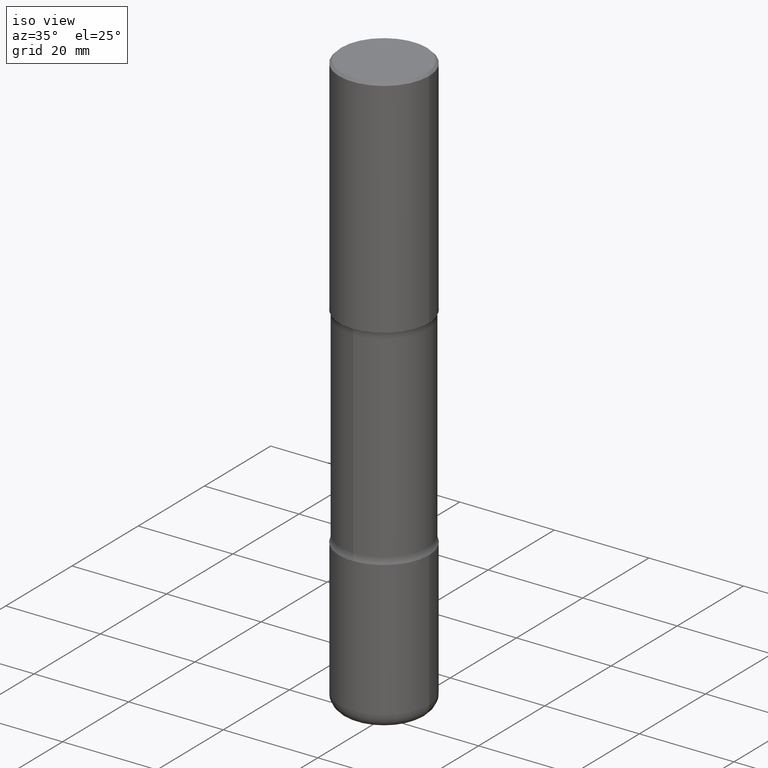
[diagram: clean part render]
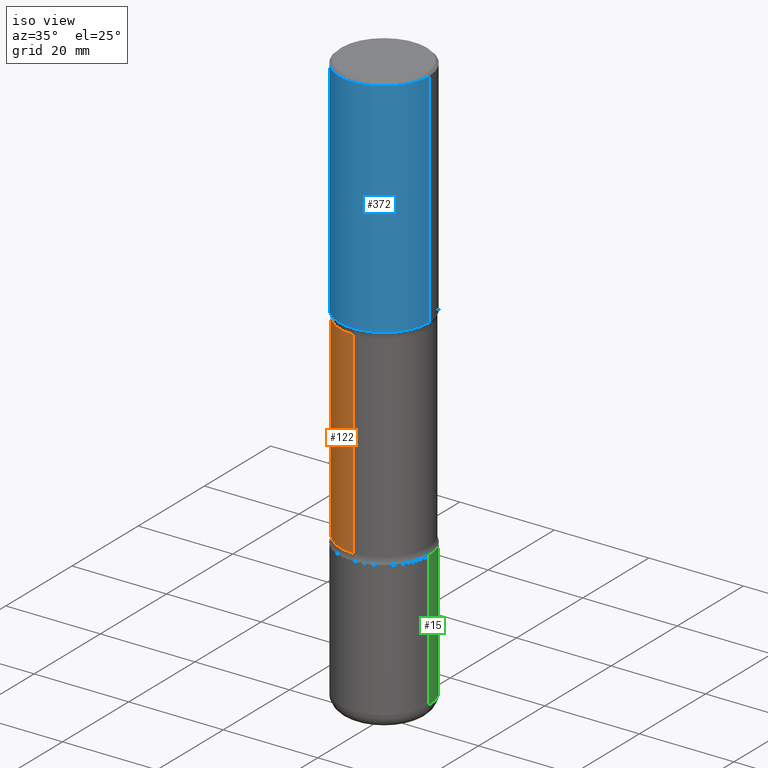
[diagram: same view with three faces highlighted in distinct colors, each labeled with its STEP entity id]
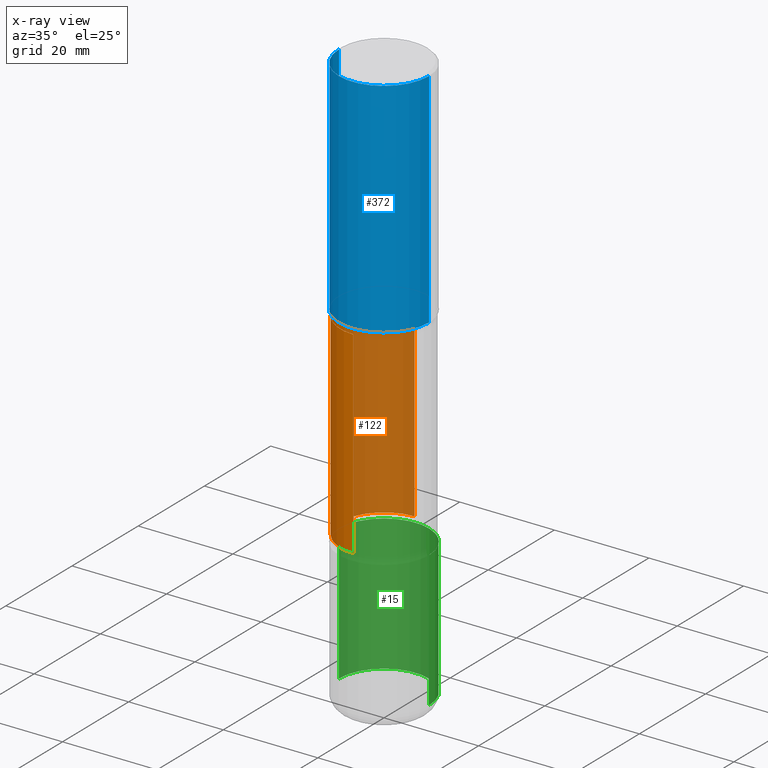
[diagram: x-ray of the same camera — body ghosted, the three highlighted faces saturated]
A machine part, iso view with three faces highlighted in distinct colors.
The next image is the same camera in x-ray (body ghosted, the three faces saturated) — at least one of them is partly hidden behind the body in this view.
Their STEP definitions:

[orange] entity #122 — the highlighted cylindrical surface (partial cylindrical patch) has radius 9.2456 mm, axis along (0, -0, -1).
#37 = CARTESIAN_POINT ( 'NONE',  ( 1.196935141160471570E-28, -1.695267532701872981E-14, -4.875000000000000000 ) ) ;
#40 = FACE_OUTER_BOUND ( 'NONE', #346, .T. ) ;
#41 = CARTESIAN_POINT ( 'NONE',  ( -2.534954010176537181E-15, -0.3640000000000067626, -1.926273774973176645 ) ) ;
#42 = VERTEX_POINT ( 'NONE', #428 ) ;
#59 = ORIENTED_EDGE ( 'NONE', *, *, #352, .F. ) ;
#65 = CARTESIAN_POINT ( 'NONE',  ( 2.541798414677888268E-15, 0.3639999999999875002, -3.573726225026824022 ) ) ;
#84 = CARTESIAN_POINT ( 'NONE',  ( 4.645831292157334029E-29, -6.818362175414279204E-15, -1.926273774973178199 ) ) ;
#97 = CIRCLE ( 'NONE', #555, 0.3639999999999999347 ) ;
#112 = DIRECTION ( 'NONE',  ( 2.483621591346876318E-29, -3.436844378969860121E-15, -1.000000000000000000 ) ) ;
#116 = CARTESIAN_POINT ( 'NONE',  ( -2.497221271188717288E-15, -0.3640000000000169211, -4.874999999999999112 ) ) ;
#122 = ADVANCED_FACE ( 'NONE', ( #40 ), #553, .T. ) ;
#134 = LINE ( 'NONE', #303, #399 ) ;
#145 = AXIS2_PLACEMENT_3D ( 'NONE', #37, #254, #169 ) ;
#151 = EDGE_CURVE ( 'NONE', #42, #376, #454, .T. ) ;
#161 = CARTESIAN_POINT ( 'NONE',  ( 2.541798414677846852E-15, 0.3639999999999931068, -1.926273774973179531 ) ) ;
#169 = DIRECTION ( 'NONE',  ( 6.982962677686265922E-15, 1.000000000000000000, -3.002030762268421058E-15 ) ) ;
#190 = ORIENTED_EDGE ( 'NONE', *, *, #432, .T. ) ;
#208 = DIRECTION ( 'NONE',  ( 2.483621591346876318E-29, -3.436844378969860121E-15, -1.000000000000000000 ) ) ;
#240 = ORIENTED_EDGE ( 'NONE', *, *, #406, .T. ) ;
#254 = DIRECTION ( 'NONE',  ( 2.483621591346876038E-29, -3.436844378969860121E-15, -1.000000000000000000 ) ) ;
#303 = CARTESIAN_POINT ( 'NONE',  ( 2.541798414677920611E-15, 0.3639999999999830593, -4.875000000000001776 ) ) ;
#339 = DIRECTION ( 'NONE',  ( 2.483621591346876038E-29, -3.436844378969860121E-15, -1.000000000000000000 ) ) ;
#346 = EDGE_LOOP ( 'NONE', ( #59, #190, #240, #531 ) ) ;
#352 = EDGE_CURVE ( 'NONE', #494, #42, #429, .T. ) ;
#370 = DIRECTION ( 'NONE',  ( 6.982962677686265922E-15, 1.000000000000000000, -3.752538452835526915E-15 ) ) ;
#376 = VERTEX_POINT ( 'NONE', #65 ) ;
#393 = VERTEX_POINT ( 'NONE', #161 ) ;
#399 = VECTOR ( 'NONE', #208, 39.37007874015748143 ) ;
#406 = EDGE_CURVE ( 'NONE', #393, #376, #134, .T. ) ;
#414 = DIRECTION ( 'NONE',  ( 2.483621591346876038E-29, -3.436844378969860121E-15, -1.000000000000000000 ) ) ;
#428 = CARTESIAN_POINT ( 'NONE',  ( -2.534954010176493005E-15, -0.3640000000000124802, -3.573726225026821801 ) ) ;
#429 = LINE ( 'NONE', #116, #525 ) ;
#432 = EDGE_CURVE ( 'NONE', #494, #393, #97, .T. ) ;
#454 = CIRCLE ( 'NONE', #529, 0.3639999999999999902 ) ;
#494 = VERTEX_POINT ( 'NONE', #41 ) ;
#505 = CARTESIAN_POINT ( 'NONE',  ( 8.737479767827876244E-29, -1.248039986800127244E-14, -3.573726225026822689 ) ) ;
#512 = DIRECTION ( 'NONE',  ( 6.982962677686265922E-15, 1.000000000000000000, -3.002030762268421058E-15 ) ) ;
#525 = VECTOR ( 'NONE', #112, 39.37007874015748143 ) ;
#529 = AXIS2_PLACEMENT_3D ( 'NONE', #505, #339, #512 ) ;
#531 = ORIENTED_EDGE ( 'NONE', *, *, #151, .F. ) ;
#553 = CYLINDRICAL_SURFACE ( 'NONE', #145, 0.3639999999999999902 ) ;
#555 = AXIS2_PLACEMENT_3D ( 'NONE', #84, #414, #370 ) ;

[blue] entity #372 — the highlighted cylindrical surface (partial cylindrical patch) has radius 9.525 mm, axis along (-0, 0, 1).
#2 = LINE ( 'NONE', #296, #242 ) ;
#28 = CARTESIAN_POINT ( 'NONE',  ( 0.000000000000000000, 0.000000000000000000, 0.000000000000000000 ) ) ;
#33 = EDGE_CURVE ( 'NONE', #107, #288, #521, .T. ) ;
#35 = AXIS2_PLACEMENT_3D ( 'NONE', #28, #452, #245 ) ;
#63 = AXIS2_PLACEMENT_3D ( 'NONE', #82, #474, #262 ) ;
#67 = EDGE_CURVE ( 'NONE', #180, #288, #2, .T. ) ;
#75 = CARTESIAN_POINT ( 'NONE',  ( 4.585254011597131119E-29, -6.546527510330898707E-15, -1.875000000000000000 ) ) ;
#82 = CARTESIAN_POINT ( 'NONE',  ( 4.890937612370306439E-31, -6.982962677686338448E-17, -0.02000000000000013572 ) ) ;
#86 = CIRCLE ( 'NONE', #446, 0.3750000000000007772 ) ;
#89 = EDGE_CURVE ( 'NONE', #295, #107, #337, .T. ) ;
#107 = VERTEX_POINT ( 'NONE', #464 ) ;
#127 = VECTOR ( 'NONE', #333, 39.37007874015748143 ) ;
#170 = DIRECTION ( 'NONE',  ( -2.445468806185136877E-29, 3.491481338843145188E-15, 1.000000000000000000 ) ) ;
#180 = VERTEX_POINT ( 'NONE', #189 ) ;
#189 = CARTESIAN_POINT ( 'NONE',  ( 0.3750000000000007772, -9.165138514463255034E-15, -1.875000000000000000 ) ) ;
#212 = EDGE_LOOP ( 'NONE', ( #462, #498, #223, #264 ) ) ;
#213 = CARTESIAN_POINT ( 'NONE',  ( -0.3750000000000006661, 2.664535259100380430E-15, -1.844600658845592961E-29 ) ) ;
#223 = ORIENTED_EDGE ( 'NONE', *, *, #67, .T. ) ;
#242 = VECTOR ( 'NONE', #170, 39.37007874015748143 ) ;
#245 = DIRECTION ( 'NONE',  ( 1.000000000000000000, -6.982962677686265922E-15, 4.876176775795936353E-29 ) ) ;
#248 = FACE_OUTER_BOUND ( 'NONE', #212, .T. ) ;
#262 = DIRECTION ( 'NONE',  ( 1.000000000000000000, -6.982962677686266711E-15, 0.000000000000000000 ) ) ;
#264 = ORIENTED_EDGE ( 'NONE', *, *, #33, .F. ) ;
#278 = CARTESIAN_POINT ( 'NONE',  ( 0.3750000000000004996, -2.642516375941190790E-15, -0.02000000000000013572 ) ) ;
#288 = VERTEX_POINT ( 'NONE', #278 ) ;
#295 = VERTEX_POINT ( 'NONE', #401 ) ;
#296 = CARTESIAN_POINT ( 'NONE',  ( 0.3750000000000006661, -2.618611004132354355E-15, 1.828566290923479285E-29 ) ) ;
#333 = DIRECTION ( 'NONE',  ( -2.445468806185136877E-29, 3.491481338843145188E-15, 1.000000000000000000 ) ) ;
#337 = LINE ( 'NONE', #213, #127 ) ;
#338 = EDGE_CURVE ( 'NONE', #295, #180, #86, .T. ) ;
#345 = DIRECTION ( 'NONE',  ( 1.000000000000000000, -6.982962677686269077E-15, 0.000000000000000000 ) ) ;
#372 = ADVANCED_FACE ( 'NONE', ( #248 ), #409, .T. ) ;
#401 = CARTESIAN_POINT ( 'NONE',  ( -0.3750000000000007772, -6.436433094534978114E-16, -1.875000000000000000 ) ) ;
#409 = CYLINDRICAL_SURFACE ( 'NONE', #35, 0.3750000000000006661 ) ;
#446 = AXIS2_PLACEMENT_3D ( 'NONE', #75, #500, #345 ) ;
#452 = DIRECTION ( 'NONE',  ( -2.445468806185136597E-29, 3.491481338843145583E-15, 1.000000000000000000 ) ) ;
#462 = ORIENTED_EDGE ( 'NONE', *, *, #89, .F. ) ;
#464 = CARTESIAN_POINT ( 'NONE',  ( -0.3750000000000004996, 2.548781377355490268E-15, -0.02000000000000013572 ) ) ;
#474 = DIRECTION ( 'NONE',  ( -2.445468806185136597E-29, 3.491481338843145583E-15, 1.000000000000000000 ) ) ;
#498 = ORIENTED_EDGE ( 'NONE', *, *, #338, .T. ) ;
#500 = DIRECTION ( 'NONE',  ( -2.445468806185136597E-29, 3.491481338843145583E-15, 1.000000000000000000 ) ) ;
#521 = CIRCLE ( 'NONE', #63, 0.3750000000000004996 ) ;

[green] entity #15 — the highlighted cylindrical surface (partial cylindrical patch) has radius 9.525 mm, axis along (-0, 0, 1).
#5 = DIRECTION ( 'NONE',  ( -2.445468806185136597E-29, 3.491481338843145583E-15, 1.000000000000000000 ) ) ;
#15 = ADVANCED_FACE ( 'NONE', ( #179 ), #383, .T. ) ;
#16 = CARTESIAN_POINT ( 'NONE',  ( 8.864824422421121284E-29, -1.265661985330640417E-14, -3.625000000000000444 ) ) ;
#29 = AXIS2_PLACEMENT_3D ( 'NONE', #477, #5, #430 ) ;
#46 = EDGE_CURVE ( 'NONE', #200, #453, #379, .T. ) ;
#53 = AXIS2_PLACEMENT_3D ( 'NONE', #221, #380, #176 ) ;
#60 = DIRECTION ( 'NONE',  ( 1.000000000000000000, -6.982962677686263555E-15, 0.000000000000000000 ) ) ;
#98 = VERTEX_POINT ( 'NONE', #124 ) ;
#106 = DIRECTION ( 'NONE',  ( -2.445468806185136597E-29, 3.491481338843145583E-15, 1.000000000000000000 ) ) ;
#120 = LINE ( 'NONE', #290, #374 ) ;
#124 = CARTESIAN_POINT ( 'NONE',  ( 0.3750000000000002220, -1.527523085743875418E-14, -3.625000000000000444 ) ) ;
#153 = CARTESIAN_POINT ( 'NONE',  ( 0.3750000000000009437, -1.922060477033151633E-14, -4.755000000000000782 ) ) ;
#176 = DIRECTION ( 'NONE',  ( 1.000000000000000000, -6.982962677686265922E-15, 4.876176775795936353E-29 ) ) ;
#179 = FACE_OUTER_BOUND ( 'NONE', #386, .T. ) ;
#192 = DIRECTION ( 'NONE',  ( -2.445468806185136877E-29, 3.491481338843145188E-15, 1.000000000000000000 ) ) ;
#200 = VERTEX_POINT ( 'NONE', #153 ) ;
#221 = CARTESIAN_POINT ( 'NONE',  ( 0.000000000000000000, 0.000000000000000000, 0.000000000000000000 ) ) ;
#228 = EDGE_CURVE ( 'NONE', #98, #282, #513, .T. ) ;
#270 = AXIS2_PLACEMENT_3D ( 'NONE', #16, #106, #60 ) ;
#277 = EDGE_CURVE ( 'NONE', #200, #98, #486, .T. ) ;
#282 = VERTEX_POINT ( 'NONE', #537 ) ;
#290 = CARTESIAN_POINT ( 'NONE',  ( -0.3750000000000006661, 2.664535259100380430E-15, -1.844600658845592961E-29 ) ) ;
#300 = ORIENTED_EDGE ( 'NONE', *, *, #277, .F. ) ;
#317 = CARTESIAN_POINT ( 'NONE',  ( 0.3750000000000006661, -2.618611004132354355E-15, 1.828566290923479285E-29 ) ) ;
#324 = DIRECTION ( 'NONE',  ( -2.445468806185136877E-29, 3.491481338843145188E-15, 1.000000000000000000 ) ) ;
#374 = VECTOR ( 'NONE', #324, 39.37007874015748143 ) ;
#379 = CIRCLE ( 'NONE', #29, 0.3750000000000009992 ) ;
#380 = DIRECTION ( 'NONE',  ( -2.445468806185136597E-29, 3.491481338843145583E-15, 1.000000000000000000 ) ) ;
#383 = CYLINDRICAL_SURFACE ( 'NONE', #53, 0.3750000000000006661 ) ;
#386 = EDGE_LOOP ( 'NONE', ( #410, #514, #527, #300 ) ) ;
#410 = ORIENTED_EDGE ( 'NONE', *, *, #46, .T. ) ;
#430 = DIRECTION ( 'NONE',  ( 1.000000000000000000, -6.982962677686265133E-15, 0.000000000000000000 ) ) ;
#453 = VERTEX_POINT ( 'NONE', #552 ) ;
#463 = EDGE_CURVE ( 'NONE', #453, #282, #120, .T. ) ;
#477 = CARTESIAN_POINT ( 'NONE',  ( 1.162820417341032685E-28, -1.660199376619916000E-14, -4.755000000000000782 ) ) ;
#486 = LINE ( 'NONE', #317, #545 ) ;
#513 = CIRCLE ( 'NONE', #270, 0.3750000000000002220 ) ;
#514 = ORIENTED_EDGE ( 'NONE', *, *, #463, .T. ) ;
#527 = ORIENTED_EDGE ( 'NONE', *, *, #228, .F. ) ;
#537 = CARTESIAN_POINT ( 'NONE',  ( -0.3750000000000002220, -1.196477155065240166E-14, -3.625000000000000444 ) ) ;
#545 = VECTOR ( 'NONE', #192, 39.37007874015748143 ) ;
#552 = CARTESIAN_POINT ( 'NONE',  ( -0.3750000000000009437, -1.393745850709877800E-14, -4.755000000000000782 ) ) ;